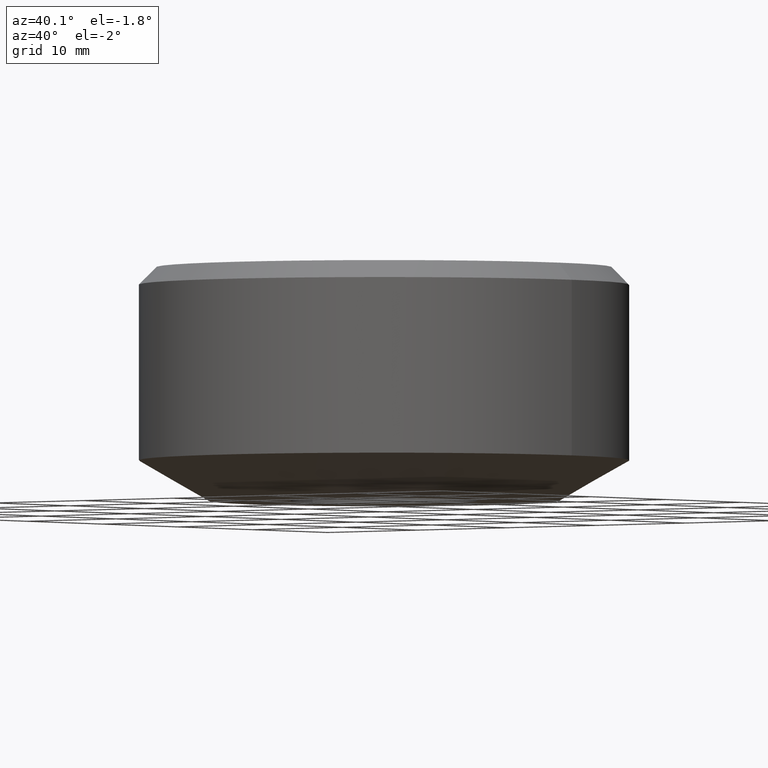
[diagram: clean part render]
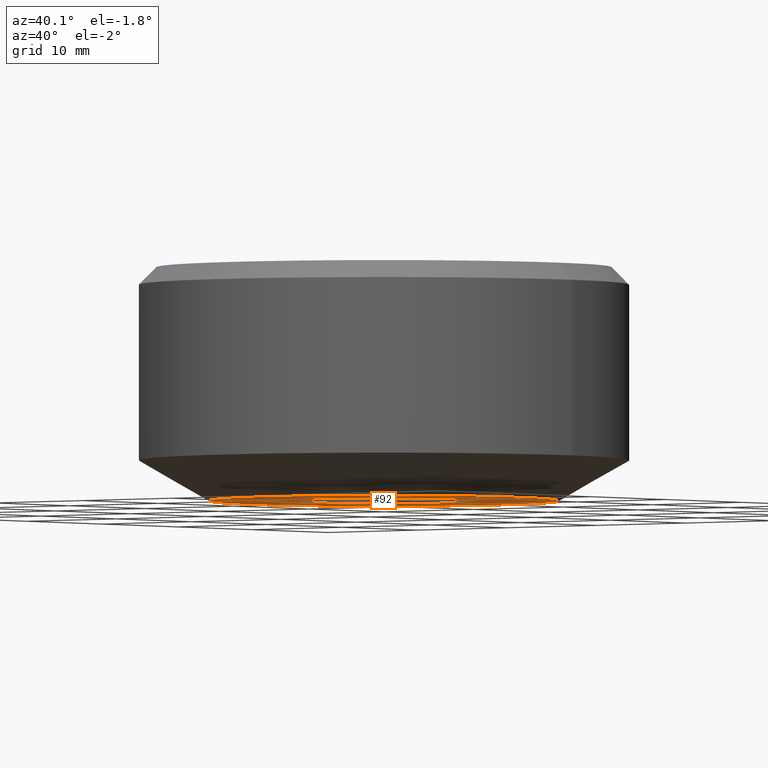
[diagram: same view with one face highlighted and labeled with its STEP entity id]
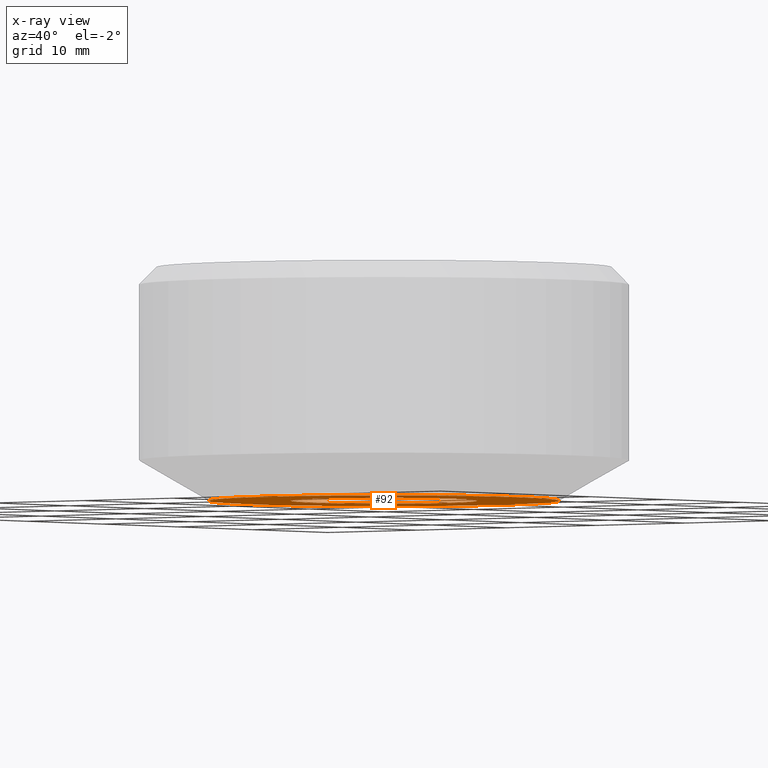
[diagram: x-ray of the same camera — body ghosted, the highlighted face saturated]
A machine part, auxiliary view. The second image highlights one B-rep face of the part: STEP entity #92.
The next image is the same camera in x-ray: the body ghosted, the highlighted face saturated — about 0% of this face is hidden behind the body in this view.
In plain terms, the highlighted planar face has unit normal (0, -0, 1).
Its self-contained STEP definition (entity closure, byte-faithful):
#8 = DIRECTION ( 'NONE',  ( -0.0000000000000000000, -0.0000000000000000000, 1.000000000000000000 ) ) ;
#12 = EDGE_CURVE ( 'NONE', #316, #147, #277, .T. ) ;
#18 = CARTESIAN_POINT ( 'NONE',  ( 0.0000000000000000000, 0.0000000000000000000, -10.00000000000000200 ) ) ;
#20 = VERTEX_POINT ( 'NONE', #46 ) ;
#30 = CIRCLE ( 'NONE', #33, 15.00000000000000000 ) ;
#33 = AXIS2_PLACEMENT_3D ( 'NONE', #177, #8, #41 ) ;
#41 = DIRECTION ( 'NONE',  ( 1.000000000000000000, 0.0000000000000000000, 0.0000000000000000000 ) ) ;
#46 = CARTESIAN_POINT ( 'NONE',  ( 15.00000000000000000, 0.0000000000000000000, -10.00000000000000200 ) ) ;
#47 = DIRECTION ( 'NONE',  ( -0.0000000000000000000, -0.0000000000000000000, 1.000000000000000000 ) ) ;
#64 = DIRECTION ( 'NONE',  ( -0.0000000000000000000, -0.0000000000000000000, 1.000000000000000000 ) ) ;
#71 = FACE_OUTER_BOUND ( 'NONE', #96, .T. ) ;
#81 = CARTESIAN_POINT ( 'NONE',  ( -15.00000000000000000, 2.204364238465235400E-015, -10.00000000000000200 ) ) ;
#92 = ADVANCED_FACE ( 'NONE', ( #71, #243 ), #181, .F. ) ;
#96 = EDGE_LOOP ( 'NONE', ( #109, #234 ) ) ;
#98 = AXIS2_PLACEMENT_3D ( 'NONE', #155, #297, #270 ) ;
#109 = ORIENTED_EDGE ( 'NONE', *, *, #233, .F. ) ;
#122 = EDGE_CURVE ( 'NONE', #175, #20, #145, .T. ) ;
#126 = CARTESIAN_POINT ( 'NONE',  ( 0.0000000000000000000, 0.0000000000000000000, -10.00000000000000200 ) ) ;
#132 = DIRECTION ( 'NONE',  ( -0.0000000000000000000, -0.0000000000000000000, 1.000000000000000000 ) ) ;
#144 = EDGE_LOOP ( 'NONE', ( #342, #293 ) ) ;
#145 = CIRCLE ( 'NONE', #337, 15.00000000000000000 ) ;
#147 = VERTEX_POINT ( 'NONE', #300 ) ;
#155 = CARTESIAN_POINT ( 'NONE',  ( 0.0000000000000000000, 15.00000000000000000, -10.00000000000000200 ) ) ;
#174 = AXIS2_PLACEMENT_3D ( 'NONE', #126, #47, #272 ) ;
#175 = VERTEX_POINT ( 'NONE', #81 ) ;
#177 = CARTESIAN_POINT ( 'NONE',  ( 0.0000000000000000000, 0.0000000000000000000, -10.00000000000000200 ) ) ;
#181 = PLANE ( 'NONE',  #98 ) ;
#195 = CARTESIAN_POINT ( 'NONE',  ( -8.000000000000000000, 9.797174393178825700E-016, -10.00000000000000200 ) ) ;
#233 = EDGE_CURVE ( 'NONE', #20, #175, #30, .T. ) ;
#234 = ORIENTED_EDGE ( 'NONE', *, *, #122, .F. ) ;
#237 = CARTESIAN_POINT ( 'NONE',  ( 0.0000000000000000000, 0.0000000000000000000, -10.00000000000000200 ) ) ;
#239 = CIRCLE ( 'NONE', #349, 8.000000000000000000 ) ;
#243 = FACE_BOUND ( 'NONE', #144, .T. ) ;
#246 = EDGE_CURVE ( 'NONE', #147, #316, #239, .T. ) ;
#247 = DIRECTION ( 'NONE',  ( 1.000000000000000000, 0.0000000000000000000, 0.0000000000000000000 ) ) ;
#264 = DIRECTION ( 'NONE',  ( 1.000000000000000000, 0.0000000000000000000, 0.0000000000000000000 ) ) ;
#270 = DIRECTION ( 'NONE',  ( 1.000000000000000000, 0.0000000000000000000, 0.0000000000000000000 ) ) ;
#272 = DIRECTION ( 'NONE',  ( 1.000000000000000000, 0.0000000000000000000, 0.0000000000000000000 ) ) ;
#277 = CIRCLE ( 'NONE', #174, 8.000000000000000000 ) ;
#293 = ORIENTED_EDGE ( 'NONE', *, *, #12, .T. ) ;
#297 = DIRECTION ( 'NONE',  ( 0.0000000000000000000, -0.0000000000000000000, 1.000000000000000000 ) ) ;
#300 = CARTESIAN_POINT ( 'NONE',  ( 8.000000000000000000, 0.0000000000000000000, -10.00000000000000200 ) ) ;
#316 = VERTEX_POINT ( 'NONE', #195 ) ;
#337 = AXIS2_PLACEMENT_3D ( 'NONE', #18, #132, #247 ) ;
#342 = ORIENTED_EDGE ( 'NONE', *, *, #246, .T. ) ;
#349 = AXIS2_PLACEMENT_3D ( 'NONE', #237, #64, #264 ) ;